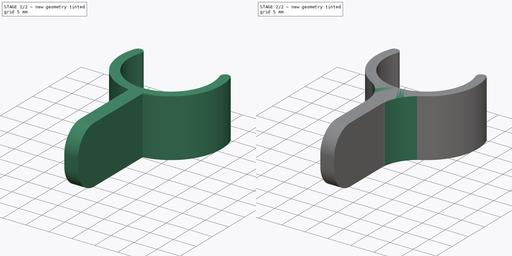
[diagram: build sequence overview — one tinted view per stage of 2, left to right]
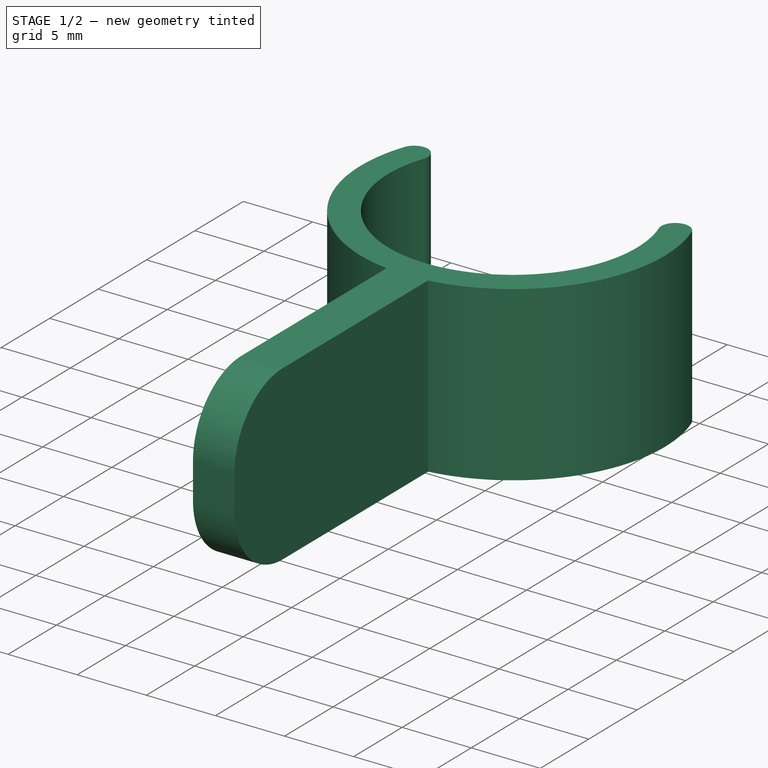
[diagram: stage 1 of 2 — iso view after this stage's code; geometry added in this stage tinted green]
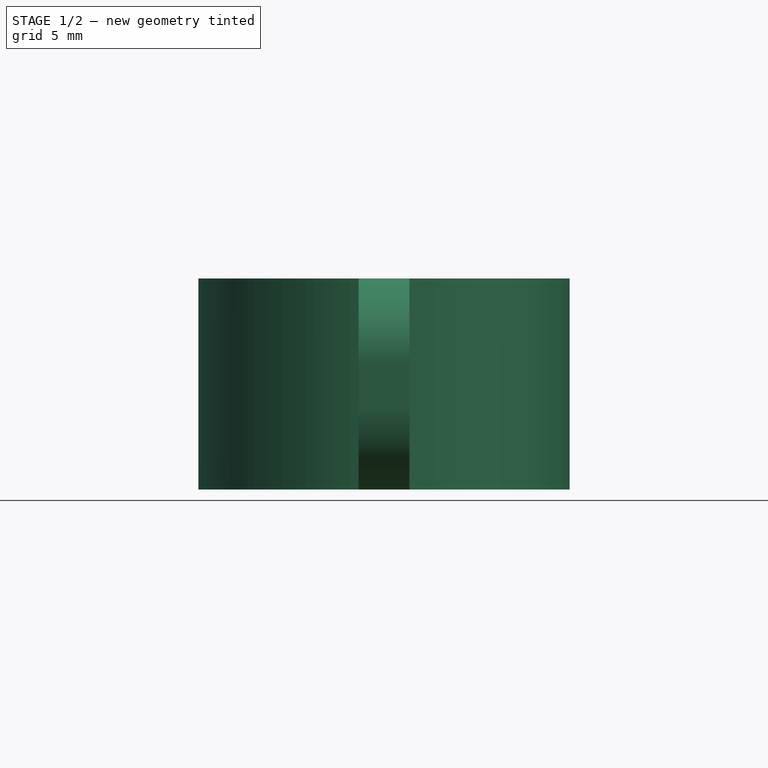
[diagram: stage 1 of 2 — front view after this stage's code; geometry added in this stage tinted green]
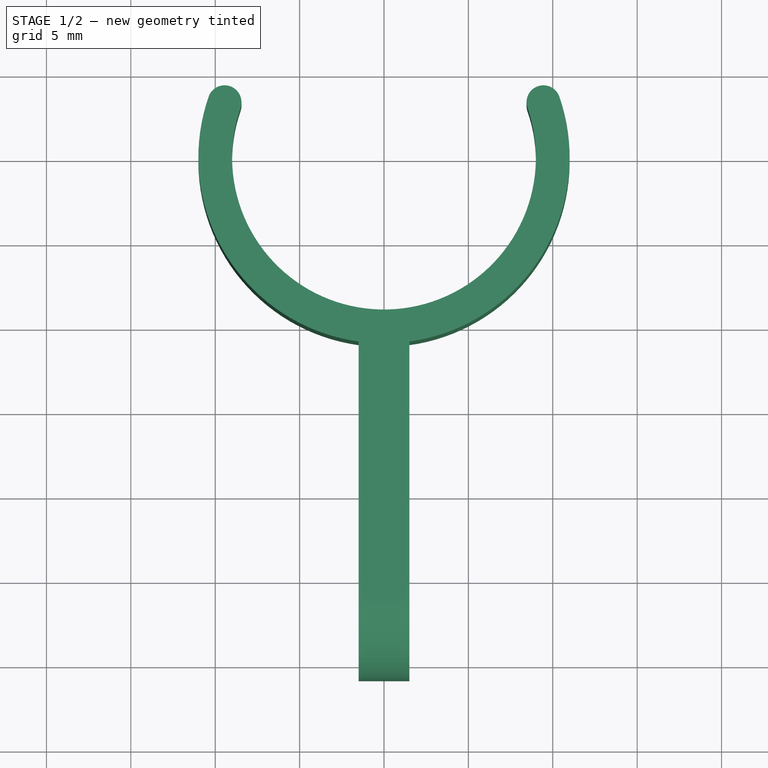
[diagram: stage 1 of 2 — top view after this stage's code; geometry added in this stage tinted green]
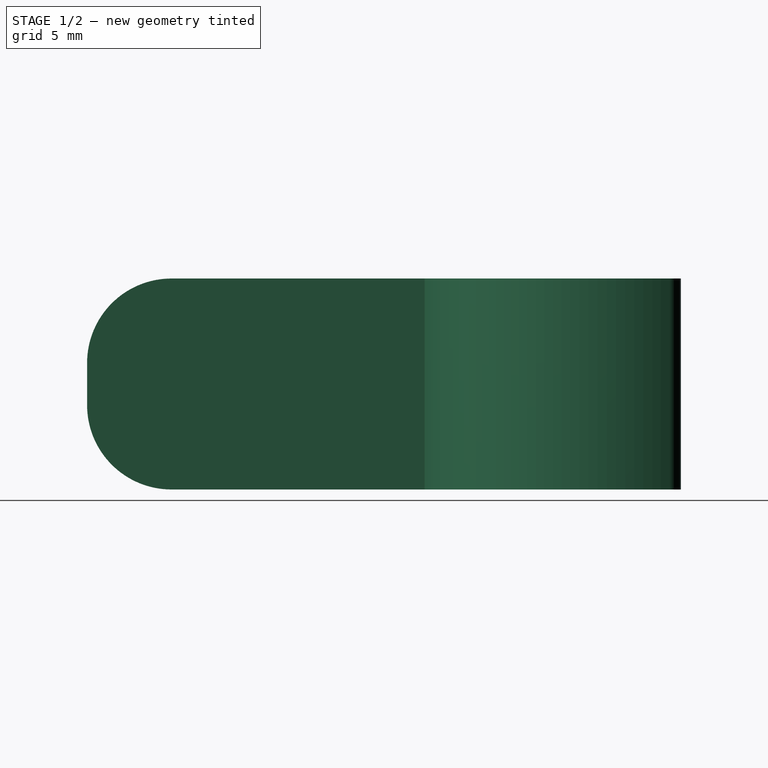
[diagram: stage 1 of 2 — right view after this stage's code; geometry added in this stage tinted green]
FCSTD DOCUMENT  (FreeCAD 0.20R)
Label: pince_mitigeur
License: All rights reserved
LicenseURL: http://en.wikipedia.org/wiki/All_rights_reserved
objects: PartDesign::Fillet×2, Sketcher::SketchObject×1, PartDesign::Pad×1, PartDesign::Body×1
note: 8 computed .brp shape members not serialized (recipe doc carries the construction recipe); baked Part::Feature solids carry a one-line shape summary decoded from their .brp

FEATURE [Sketcher::SketchObject] Sketch
  FullyConstrained = true
  MapMode = 5
  Support = -> [XY_Plane]
  sketch-geometry (13):
    g0: Circle CenterX=0 CenterY=0 CenterZ=0 NormalX=0 NormalY=0 NormalZ=1 AngleXU=0 Radius=9
    g1: Circle CenterX=0 CenterY=0 CenterZ=0 NormalX=0 NormalY=0 NormalZ=1 AngleXU=0 Radius=11
    g2: ArcOfCircle CenterX=0 CenterY=0 CenterZ=0 NormalX=0 NormalY=0 NormalZ=1 AngleXU=0 Radius=9 StartAngle=2.8067 EndAngle=6.61808
    g3: ArcOfCircle CenterX=0 CenterY=0 CenterZ=0 NormalX=0 NormalY=0 NormalZ=1 AngleXU=0 Radius=11 StartAngle=2.8067 EndAngle=4.5756
    g4: LineSegment StartX=-10.3889 StartY=3.61538 StartZ=0 EndX=-8.5 EndY=2.95804 EndZ=0
    g5: ArcOfCircle CenterX=-9.44444 CenterY=3.28671 CenterZ=0 NormalX=0 NormalY=0 NormalZ=1 AngleXU=0 Radius=1 StartAngle=5.94829 EndAngle=9.08988
    g6: ArcOfCircle CenterX=9.44444 CenterY=3.28671 CenterZ=0 NormalX=0 NormalY=0 NormalZ=1 AngleXU=0 Radius=1 StartAngle=0.334896 EndAngle=3.47649
    g7: LineSegment StartX=8.5 StartY=2.95804 StartZ=0 EndX=10.3889 EndY=3.61538 EndZ=0
    g8: LineSegment StartX=-1.5 StartY=-10.8972 StartZ=0 EndX=-1.5 EndY=-30.8972 EndZ=0
    g9: LineSegment StartX=-1.5 StartY=-30.8972 StartZ=0 EndX=1.5 EndY=-30.8972 EndZ=0
    g10: LineSegment StartX=1.5 StartY=-30.8972 StartZ=0 EndX=1.5 EndY=-10.8972 EndZ=0
    g11: GeomPoint X=0 Y=-11 Z=0
    g12: ArcOfCircle CenterX=0 CenterY=0 CenterZ=0 NormalX=0 NormalY=0 NormalZ=1 AngleXU=0 Radius=11 StartAngle=4.84918 EndAngle=6.61808
  constraints (36):
    c: Coincident(g0,g-1)
    c: Coincident(g1,g0)
    c: Diameter(g1) = 22
    c: Diameter(g0) = 18
    c: Coincident(g2,g0)
    c: Diameter(g2) = 18
    c: Horizontal(g2,g2)
    c: DistanceX(g2,g2) = 17
    c: Coincident(g3,g2)
    c: PointOnObject(g12,g1)
    c: Horizontal(g3,g12)
    c: Coincident(g4,g3)
    c: Coincident(g4,g2)
    c: Perpendicular(g2,g4)
    c: PointOnObject(g5,g4)
    c: Coincident(g5,g3)
    c: Coincident(g5,g2)
    c: Coincident(g6,g2)
    c: Coincident(g6,g12)
    c: Coincident(g7,g2)
    c: Coincident(g7,g12)
    c: PointOnObject(g6,g7)
    c: Vertical(g8)
    c: Coincident(g9,g8)
    c: Horizontal(g9)
    c: Vertical(g10)
    c: Coincident(g10,g9)
    c: DistanceX(g9,g9) = 3
    c: DistanceY(g10,g10) = 20
    c: PointOnObject(g11,g1)
    c: Vertical(g11,g2)
    c: DistanceX(g8,g11) = 1.5
    c: Equal(g3,g12)
    c: Coincident(g3,g8)
    c: Coincident(g12,g10)
    c: Coincident(g3,g12)
FEATURE [PartDesign::Pad] Pad
  Direction = (0,0,1)
  Length = 12.5
  Length2 = 10
  Profile = -> Sketch
  ReferenceAxis = -> Sketch [N_Axis]
  Type = 0
FEATURE [PartDesign::Fillet] Fillet
  Base = -> Pad [Edge18,Edge19]
  BaseFeature = -> Pad
  Radius = 5
  SupportTransform = false
  UseAllEdges = false
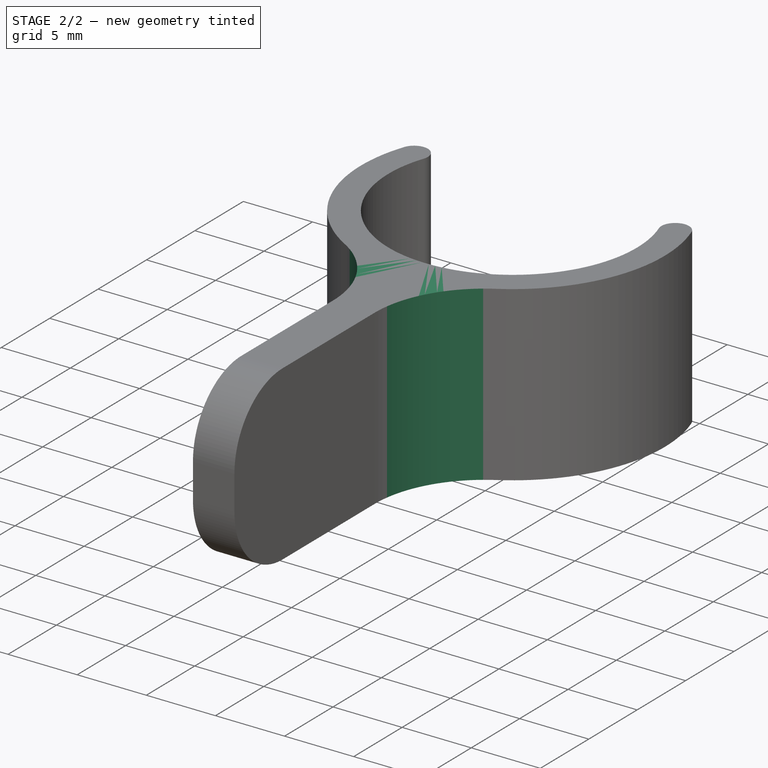
[diagram: stage 2 of 2 — iso view after this stage's code; geometry added in this stage tinted green]
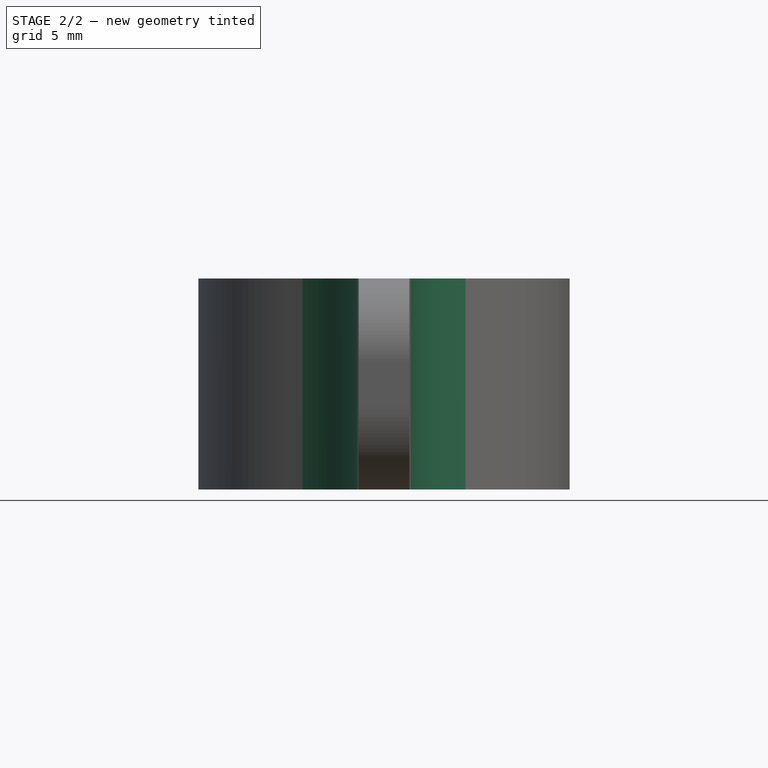
[diagram: stage 2 of 2 — front view after this stage's code; geometry added in this stage tinted green]
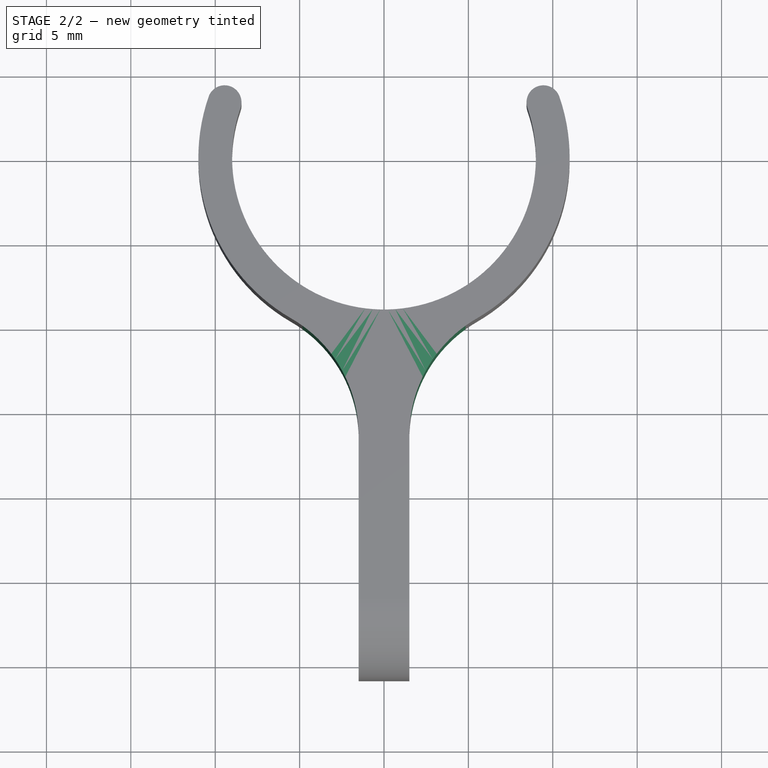
[diagram: stage 2 of 2 — top view after this stage's code; geometry added in this stage tinted green]
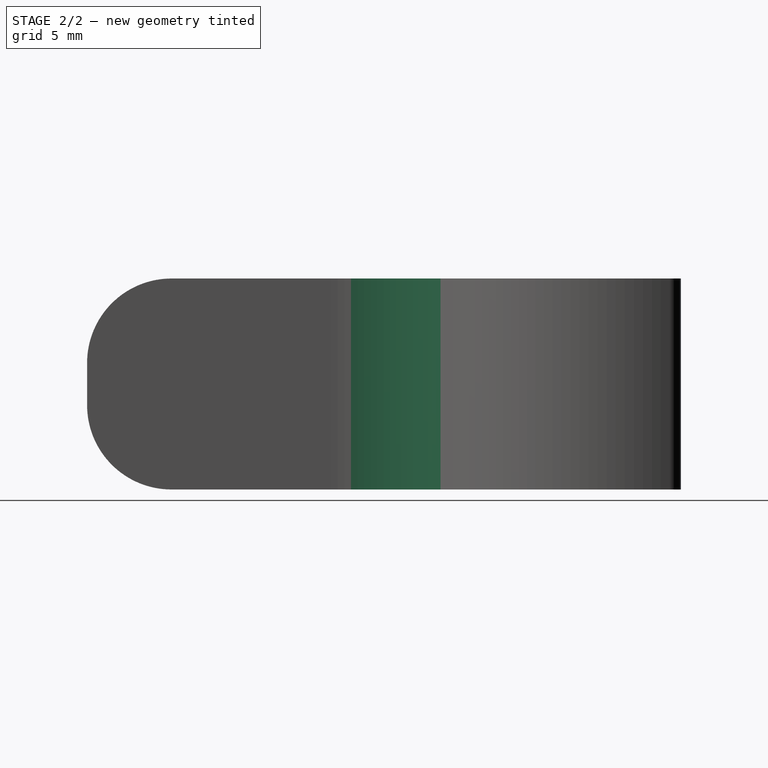
[diagram: stage 2 of 2 — right view after this stage's code; geometry added in this stage tinted green]
FEATURE [PartDesign::Fillet] Fillet001
  Base = -> Fillet [Edge6,Edge27]
  BaseFeature = -> Fillet
  Radius = 8
  SupportTransform = false
  UseAllEdges = false
FEATURE [PartDesign::Body] Body
  Group = -> [Sketch,Pad,Fillet,Fillet001]
  Origin = -> Origin
  Tip = -> Fillet001
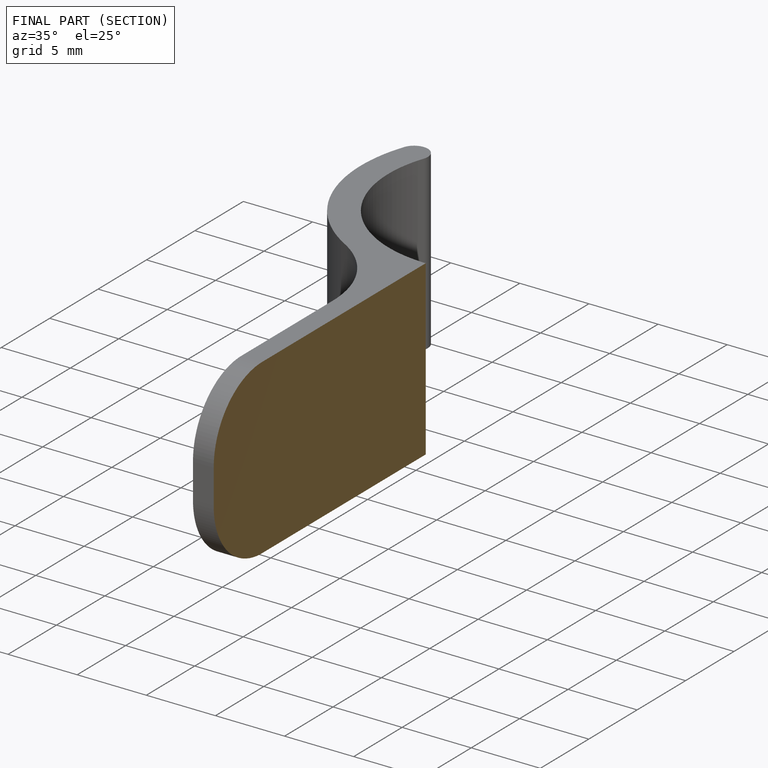
[diagram: finished part — half-section view (interior)]
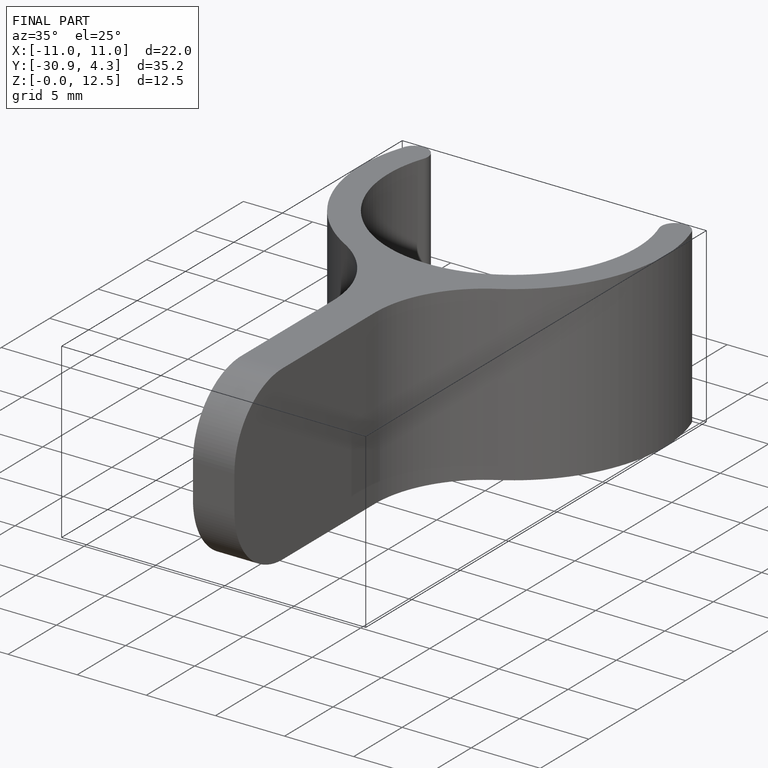
[diagram: finished part — iso view with bounding-box wireframe]
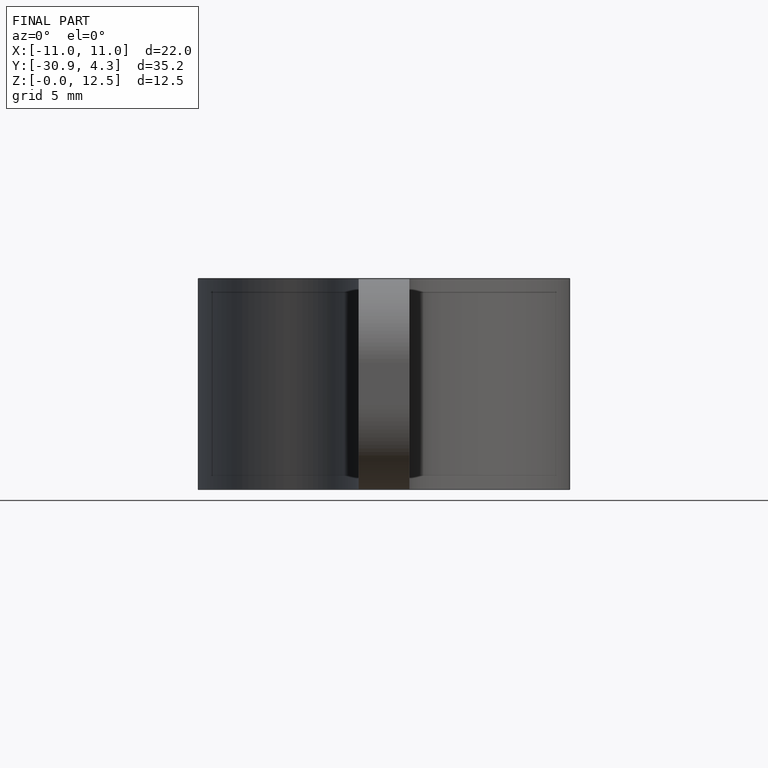
[diagram: finished part — front view with bounding-box wireframe]
